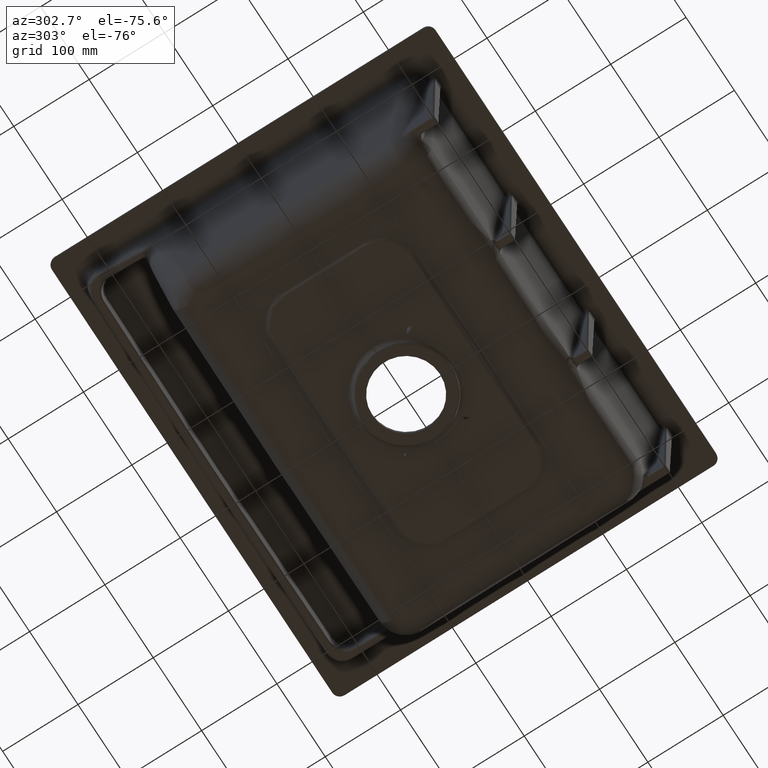
[diagram: clean part render]
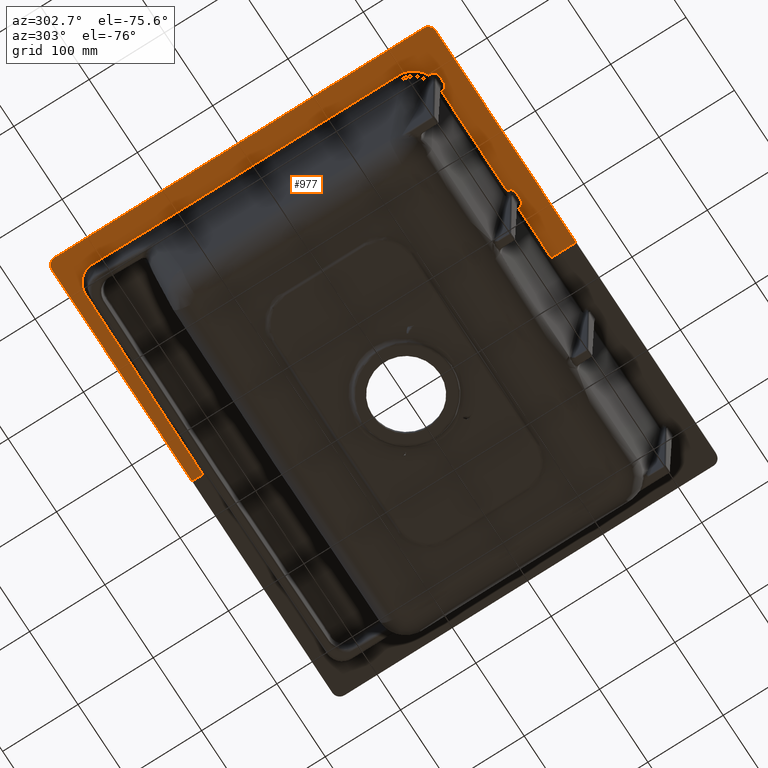
[diagram: same view with one face highlighted and labeled with its STEP entity id]
A machine part, auxiliary view. The second image highlights one B-rep face of the part: STEP entity #977.
In plain terms, the highlighted planar face has unit normal (0, 0, -1).
Its self-contained STEP definition (entity closure, byte-faithful):
#64=ELLIPSE('',#5563,10.0274281381557,10.);
#65=ELLIPSE('',#5566,10.0274281381549,9.99999999999955);
#437=PLANE('',#5619);
#465=LINE('',#13610,#494);
#466=LINE('',#13611,#495);
#469=LINE('',#19510,#498);
#472=LINE('',#19518,#501);
#473=LINE('',#20517,#502);
#474=LINE('',#20743,#503);
#494=VECTOR('',#5843,1.);
#495=VECTOR('',#5844,1.);
#498=VECTOR('',#5935,1.);
#501=VECTOR('',#5944,1.);
#502=VECTOR('',#5999,1.);
#503=VECTOR('',#6018,1.);
#977=ADVANCED_FACE('',(#1436),#437,.T.);
#1436=FACE_OUTER_BOUND('',#1800,.T.);
#1800=EDGE_LOOP('',(#3385,#3386,#3387,#3388,#3389,#3390,#3391,#3392,#3393,
#3394,#3395,#3396,#3397,#3398,#3399,#3400,#3401,#3402,#3403,#3404,#3405,
#3406,#3407,#3408));
#3385=ORIENTED_EDGE('',*,*,#4445,.T.);
#3386=ORIENTED_EDGE('',*,*,#4807,.T.);
#3387=ORIENTED_EDGE('',*,*,#4803,.T.);
#3388=ORIENTED_EDGE('',*,*,#4797,.T.);
#3389=ORIENTED_EDGE('',*,*,#4791,.T.);
#3390=ORIENTED_EDGE('',*,*,#4785,.T.);
#3391=ORIENTED_EDGE('',*,*,#4775,.T.);
#3392=ORIENTED_EDGE('',*,*,#4781,.T.);
#3393=ORIENTED_EDGE('',*,*,#4787,.T.);
#3394=ORIENTED_EDGE('',*,*,#4793,.T.);
#3395=ORIENTED_EDGE('',*,*,#4799,.T.);
#3396=ORIENTED_EDGE('',*,*,#4809,.T.);
#3397=ORIENTED_EDGE('',*,*,#4815,.T.);
#3398=ORIENTED_EDGE('',*,*,#4817,.T.);
#3399=ORIENTED_EDGE('',*,*,#4820,.T.);
#3400=ORIENTED_EDGE('',*,*,#4823,.T.);
#3401=ORIENTED_EDGE('',*,*,#4826,.T.);
#3402=ORIENTED_EDGE('',*,*,#4831,.T.);
#3403=ORIENTED_EDGE('',*,*,#4446,.T.);
#3404=ORIENTED_EDGE('',*,*,#4725,.F.);
#3405=ORIENTED_EDGE('',*,*,#4723,.T.);
#3406=ORIENTED_EDGE('',*,*,#4721,.F.);
#3407=ORIENTED_EDGE('',*,*,#4719,.T.);
#3408=ORIENTED_EDGE('',*,*,#4717,.T.);
#3558=VERTEX_POINT('',#6484);
#3729=VERTEX_POINT('',#12136);
#3734=VERTEX_POINT('',#12165);
#3782=VERTEX_POINT('',#13447);
#3938=VERTEX_POINT('',#19511);
#3939=VERTEX_POINT('',#19515);
#3940=VERTEX_POINT('',#19519);
#3941=VERTEX_POINT('',#19526);
#3966=VERTEX_POINT('',#20516);
#3967=VERTEX_POINT('',#20518);
#3971=VERTEX_POINT('',#20530);
#3972=VERTEX_POINT('',#20567);
#3975=VERTEX_POINT('',#20617);
#3976=VERTEX_POINT('',#20641);
#3979=VERTEX_POINT('',#20665);
#3980=VERTEX_POINT('',#20702);
#3983=VERTEX_POINT('',#20742);
#3984=VERTEX_POINT('',#20753);
#3988=VERTEX_POINT('',#20843);
#3991=VERTEX_POINT('',#20876);
#3993=VERTEX_POINT('',#20884);
#3995=VERTEX_POINT('',#20917);
#3997=VERTEX_POINT('',#20940);
#3999=VERTEX_POINT('',#20973);
#4445=EDGE_CURVE('',#3729,#3782,#465,.T.);
#4446=EDGE_CURVE('',#3558,#3734,#466,.T.);
#4717=EDGE_CURVE('',#3938,#3729,#469,.T.);
#4719=EDGE_CURVE('',#3939,#3938,#64,.T.);
#4721=EDGE_CURVE('',#3939,#3940,#472,.T.);
#4723=EDGE_CURVE('',#3941,#3940,#65,.T.);
#4725=EDGE_CURVE('',#3941,#3734,#5322,.T.);
#4775=EDGE_CURVE('',#3967,#3966,#473,.T.);
#4781=EDGE_CURVE('',#3966,#3971,#5356,.T.);
#4785=EDGE_CURVE('',#3972,#3967,#5360,.T.);
#4787=EDGE_CURVE('',#3971,#3975,#5361,.T.);
#4791=EDGE_CURVE('',#3976,#3972,#5364,.T.);
#4793=EDGE_CURVE('',#3975,#3979,#5365,.T.);
#4797=EDGE_CURVE('',#3980,#3976,#5369,.T.);
#4799=EDGE_CURVE('',#3979,#3983,#474,.T.);
#4803=EDGE_CURVE('',#3984,#3980,#5373,.T.);
#4807=EDGE_CURVE('',#3782,#3984,#5375,.T.);
#4809=EDGE_CURVE('',#3983,#3988,#5376,.T.);
#4815=EDGE_CURVE('',#3988,#3991,#5379,.T.);
#4817=EDGE_CURVE('',#3991,#3993,#5380,.T.);
#4820=EDGE_CURVE('',#3993,#3995,#5382,.T.);
#4823=EDGE_CURVE('',#3995,#3997,#5384,.T.);
#4826=EDGE_CURVE('',#3997,#3999,#5386,.T.);
#4831=EDGE_CURVE('',#3999,#3558,#5389,.T.);
#5322=B_SPLINE_CURVE_WITH_KNOTS('',3,(#19534,#19535,#19536,#19537),
 .UNSPECIFIED.,.F.,.F.,(4,4),(0.,1.),.UNSPECIFIED.);
#5356=B_SPLINE_CURVE_WITH_KNOTS('',3,(#20531,#20532,#20533,#20534,#20535,
#20536),.UNSPECIFIED.,.F.,.F.,(4,2,4),(0.,0.499999999999997,1.),
 .UNSPECIFIED.);
#5360=B_SPLINE_CURVE_WITH_KNOTS('',3,(#20575,#20576,#20577,#20578,#20579,
#20580,#20581,#20582,#20583,#20584),.UNSPECIFIED.,.F.,.F.,(4,2,2,2,4),(0.,
0.25,0.5,0.75,1.),.UNSPECIFIED.);
#5361=B_SPLINE_CURVE_WITH_KNOTS('',3,(#20618,#20619,#20620,#20621),
 .UNSPECIFIED.,.F.,.F.,(4,4),(0.,1.),.UNSPECIFIED.);
#5364=B_SPLINE_CURVE_WITH_KNOTS('',3,(#20647,#20648,#20649,#20650),
 .UNSPECIFIED.,.F.,.F.,(4,4),(0.,1.),.UNSPECIFIED.);
#5365=B_SPLINE_CURVE_WITH_KNOTS('',3,(#20666,#20667,#20668,#20669,#20670,
#20671),.UNSPECIFIED.,.F.,.F.,(4,2,4),(0.,0.5,1.),.UNSPECIFIED.);
#5369=B_SPLINE_CURVE_WITH_KNOTS('',3,(#20712,#20713,#20714,#20715),
 .UNSPECIFIED.,.F.,.F.,(4,4),(0.,1.),.UNSPECIFIED.);
#5373=B_SPLINE_CURVE_WITH_KNOTS('',3,(#20771,#20772,#20773,#20774,#20775,
#20776,#20777,#20778,#20779,#20780),.UNSPECIFIED.,.F.,.F.,(4,2,2,2,4),(0.,
0.25,0.499999999999999,0.749999999999998,1.),.UNSPECIFIED.);
#5375=B_SPLINE_CURVE_WITH_KNOTS('',3,(#20825,#20826,#20827,#20828),
 .UNSPECIFIED.,.F.,.F.,(4,4),(0.,1.),.UNSPECIFIED.);
#5376=B_SPLINE_CURVE_WITH_KNOTS('',3,(#20844,#20845,#20846,#20847),
 .UNSPECIFIED.,.F.,.F.,(4,4),(0.,1.),.UNSPECIFIED.);
#5379=B_SPLINE_CURVE_WITH_KNOTS('',3,(#20877,#20878,#20879,#20880),
 .UNSPECIFIED.,.F.,.F.,(4,4),(0.,1.),.UNSPECIFIED.);
#5380=B_SPLINE_CURVE_WITH_KNOTS('',3,(#20885,#20886,#20887,#20888,#20889,
#20890),.UNSPECIFIED.,.F.,.F.,(4,2,4),(0.,0.5,1.),.UNSPECIFIED.);
#5382=B_SPLINE_CURVE_WITH_KNOTS('',3,(#20918,#20919,#20920,#20921),
 .UNSPECIFIED.,.F.,.F.,(4,4),(0.,1.),.UNSPECIFIED.);
#5384=B_SPLINE_CURVE_WITH_KNOTS('',3,(#20941,#20942,#20943,#20944,#20945,
#20946),.UNSPECIFIED.,.F.,.F.,(4,2,4),(0.,0.5,1.),.UNSPECIFIED.);
#5386=B_SPLINE_CURVE_WITH_KNOTS('',3,(#20974,#20975,#20976,#20977),
 .UNSPECIFIED.,.F.,.F.,(4,4),(0.,1.),.UNSPECIFIED.);
#5389=B_SPLINE_CURVE_WITH_KNOTS('',3,(#20993,#20994,#20995,#20996),
 .UNSPECIFIED.,.F.,.F.,(4,4),(0.,1.),.UNSPECIFIED.);
#5563=AXIS2_PLACEMENT_3D('',#19514,#5939,#5940);
#5566=AXIS2_PLACEMENT_3D('',#19525,#5947,#5948);
#5619=AXIS2_PLACEMENT_3D('',#21009,#6055,#6056);
#5843=DIRECTION('',(0.,-1.,0.));
#5844=DIRECTION('',(0.,-1.,0.));
#5935=DIRECTION('',(1.,0.,0.));
#5939=DIRECTION('',(0.,0.,-1.));
#5940=DIRECTION('',(0.707106781186548,-0.707106781186548,0.));
#5944=DIRECTION('',(0.,-1.,0.));
#5947=DIRECTION('',(0.,0.,-1.));
#5948=DIRECTION('',(-0.70710678119122,-0.707106781181875,0.));
#5999=DIRECTION('',(0.,-1.,0.));
#6018=DIRECTION('',(0.,1.,0.));
#6055=DIRECTION('',(0.,0.,-1.));
#6056=DIRECTION('',(-1.,0.,0.));
#6484=CARTESIAN_POINT('',(-8.11543118939975E-13,-192.672775403693,-10.));
#12136=CARTESIAN_POINT('',(4.13590306276514E-22,284.291731327924,-10.));
#12165=CARTESIAN_POINT('',(-8.68845922370994E-16,-225.498637556748,-10.));
#13447=CARTESIAN_POINT('',(3.24319355164722E-8,269.846816152976,-10.));
#13610=CARTESIAN_POINT('',(0.,29.3965468806914,-10.));
#13611=CARTESIAN_POINT('',(0.,29.3965468806914,-10.));
#19510=CARTESIAN_POINT('',(-161.894993198295,284.291731327924,-10.));
#19511=CARTESIAN_POINT('',(-289.908889093888,284.291731327924,-10.));
#19514=CARTESIAN_POINT('',(-289.881460981455,274.278007867945,-10.));
#19515=CARTESIAN_POINT('',(-299.895184448263,274.305439737208,-10.0000001303037));
#19518=CARTESIAN_POINT('',(-299.895184441434,29.3965468806914,-10.));
#19519=CARTESIAN_POINT('',(-299.895184441433,-215.512342207663,-9.99999999998847));
#19525=CARTESIAN_POINT('',(-289.881460981454,-215.48491409523,-10.));
#19526=CARTESIAN_POINT('',(-289.908889080936,-225.49863754267,-9.99999975034023));
#19534=CARTESIAN_POINT('',(-289.90888909402,-225.498637555132,-10.));
#19535=CARTESIAN_POINT('',(-193.272592729346,-225.498637556039,-9.99999999999998));
#19536=CARTESIAN_POINT('',(-96.6362963646734,-225.498637559703,-9.99999999999998));
#19537=CARTESIAN_POINT('',(5.03069808033274E-14,-225.498637554702,-9.99999999999999));
#20516=CARTESIAN_POINT('',(-251.137396074365,-193.89400159666,-10.));
#20517=CARTESIAN_POINT('',(-251.137396074365,-192.411009267276,-10.));
#20518=CARTESIAN_POINT('',(-251.137396074365,-190.928016937892,-10.));
#20530=CARTESIAN_POINT('',(-244.107186534388,-200.893673758572,-10.));
#20531=CARTESIAN_POINT('',(-251.137396074365,-193.89400159666,-10.));
#20532=CARTESIAN_POINT('',(-251.137395774195,-195.747851054385,-10.));
#20533=CARTESIAN_POINT('',(-250.372310116333,-197.565154436289,-10.));
#20534=CARTESIAN_POINT('',(-247.777165946663,-200.147223138124,-10.));
#20535=CARTESIAN_POINT('',(-245.961019265606,-200.901811091508,-10.));
#20536=CARTESIAN_POINT('',(-244.107186534388,-200.893673758572,-10.));
#20567=CARTESIAN_POINT('',(-269.38679702231,-163.226329715868,-10.));
#20575=CARTESIAN_POINT('',(-269.38679702231,-163.226329715868,-10.));
#20576=CARTESIAN_POINT('',(-269.402930929925,-166.181529284543,-10.));
#20577=CARTESIAN_POINT('',(-268.99704333239,-169.067836871639,-10.));
#20578=CARTESIAN_POINT('',(-267.33555275632,-174.701742108875,-10.));
#20579=CARTESIAN_POINT('',(-266.063209213881,-177.42636423556,-10.));
#20580=CARTESIAN_POINT('',(-262.837687145497,-182.305633279269,-10.));
#20581=CARTESIAN_POINT('',(-260.869296714416,-184.505029482309,-10.));
#20582=CARTESIAN_POINT('',(-256.349535082931,-188.26016144267,-10.));
#20583=CARTESIAN_POINT('',(-253.861415485036,-189.77931210704,-10.));
#20584=CARTESIAN_POINT('',(-251.137396074365,-190.928016937888,-10.));
#20617=CARTESIAN_POINT('',(-234.715769537192,-200.852885212516,-10.));
#20618=CARTESIAN_POINT('',(-244.107186534388,-200.893673758572,-10.));
#20619=CARTESIAN_POINT('',(-240.976714834723,-200.879932664224,-10.));
#20620=CARTESIAN_POINT('',(-237.846242495616,-200.866336482193,-10.));
#20621=CARTESIAN_POINT('',(-234.715769537192,-200.852885212516,-10.));
#20641=CARTESIAN_POINT('',(-269.956498835161,164.066656093869,-10.));
#20647=CARTESIAN_POINT('',(-269.956498835161,164.066656093869,-10.));
#20648=CARTESIAN_POINT('',(-269.000926693744,54.9719001377043,-10.));
#20649=CARTESIAN_POINT('',(-268.811021413019,-54.1289080078152,-10.));
#20650=CARTESIAN_POINT('',(-269.386797737863,-163.226329711962,-10.));
#20665=CARTESIAN_POINT('',(-227.746358960821,-193.853210668212,-10.));
#20666=CARTESIAN_POINT('',(-234.715769537192,-200.852885212516,-10.));
#20667=CARTESIAN_POINT('',(-232.872192646793,-200.844963582061,-10.));
#20668=CARTESIAN_POINT('',(-231.068195411202,-200.081094417682,-10.));
#20669=CARTESIAN_POINT('',(-228.499773150112,-197.499631150042,-10.));
#20670=CARTESIAN_POINT('',(-227.746358960821,-195.696801924501,-10.));
#20671=CARTESIAN_POINT('',(-227.746358960821,-193.853210668212,-10.));
#20702=CARTESIAN_POINT('',(-270.774331671825,242.79443858215,-10.));
#20712=CARTESIAN_POINT('',(-270.774331671825,242.79443858215,-10.));
#20713=CARTESIAN_POINT('',(-270.463379980036,216.552271103826,-10.));
#20714=CARTESIAN_POINT('',(-270.188113942422,190.309643754194,-10.));
#20715=CARTESIAN_POINT('',(-269.957209726347,164.0666498671,-10.));
#20742=CARTESIAN_POINT('',(-227.74635896082,-193.226087563218,-10.));
#20743=CARTESIAN_POINT('',(-227.746358960821,-193.539649115715,-10.));
#20753=CARTESIAN_POINT('',(-246.084059581058,267.959744138025,-9.99999999999999));
#20771=CARTESIAN_POINT('',(-246.084059581058,267.959744138025,-9.99999999999999));
#20772=CARTESIAN_POINT('',(-249.377121607547,267.924531286088,-9.99999999999999));
#20773=CARTESIAN_POINT('',(-252.594662026424,267.253333992268,-10.));
#20774=CARTESIAN_POINT('',(-258.632314930154,264.695402769484,-10.));
#20775=CARTESIAN_POINT('',(-261.386969874272,262.817086618209,-10.));
#20776=CARTESIAN_POINT('',(-265.944404919952,258.17666764542,-10.));
#20777=CARTESIAN_POINT('',(-267.768876559502,255.392143169656,-10.));
#20778=CARTESIAN_POINT('',(-270.203783947445,249.328085773622,-10.));
#20779=CARTESIAN_POINT('',(-270.813267805037,246.087698681324,-9.99999999999999));
#20780=CARTESIAN_POINT('',(-270.774331663175,242.794438582252,-9.99999999999999));
#20825=CARTESIAN_POINT('',(1.20373693786124E-16,269.846816152976,-10.));
#20826=CARTESIAN_POINT('',(-82.0297169387721,269.459964458864,-10.));
#20827=CARTESIAN_POINT('',(-164.058056799527,268.830940635084,-10.));
#20828=CARTESIAN_POINT('',(-246.084059581759,267.959744203568,-10.));
#20843=CARTESIAN_POINT('',(-91.501387127024,-192.846268715909,-10.));
#20844=CARTESIAN_POINT('',(-227.74635896082,-193.226087563218,-10.));
#20845=CARTESIAN_POINT('',(-182.331442208917,-193.075257289778,-10.));
#20846=CARTESIAN_POINT('',(-136.916438542622,-192.948651953777,-10.));
#20847=CARTESIAN_POINT('',(-91.5013867312877,-192.846268715017,-10.));
#20876=CARTESIAN_POINT('',(-91.5013873142306,-193.309950844224,-10.));
#20877=CARTESIAN_POINT('',(-91.5013873142306,-192.846268716331,-10.));
#20878=CARTESIAN_POINT('',(-91.5013873142306,-193.000829425629,-10.));
#20879=CARTESIAN_POINT('',(-91.5013873142306,-193.155390134926,-10.));
#20880=CARTESIAN_POINT('',(-91.5013873142306,-193.309950844224,-10.));
#20884=CARTESIAN_POINT('',(-84.4824109540187,-200.309668379568,-10.));
#20885=CARTESIAN_POINT('',(-91.5013873142306,-193.309950844224,-10.));
#20886=CARTESIAN_POINT('',(-91.5013873142306,-195.161904778106,-10.));
#20887=CARTESIAN_POINT('',(-90.7379781034691,-196.977363697139,-10.));
#20888=CARTESIAN_POINT('',(-88.1474416351502,-199.558990259563,-10.));
#20889=CARTESIAN_POINT('',(-86.3343588657276,-200.314824950041,-10.));
#20890=CARTESIAN_POINT('',(-84.4824109540187,-200.309668379568,-10.));
#20917=CARTESIAN_POINT('',(-75.0901999932965,-200.283951482608,-10.));
#20918=CARTESIAN_POINT('',(-84.4824109540187,-200.309668379568,-10.));
#20919=CARTESIAN_POINT('',(-81.3516743673148,-200.300951145278,-10.));
#20920=CARTESIAN_POINT('',(-78.2209373736977,-200.292378846282,-10.));
#20921=CARTESIAN_POINT('',(-75.0901999932965,-200.283951482608,-10.));
#20940=CARTESIAN_POINT('',(-68.1095541236104,-193.28423386515,-10.));
#20941=CARTESIAN_POINT('',(-75.0901999932965,-200.283951482608,-10.));
#20942=CARTESIAN_POINT('',(-73.2447173357526,-200.278983785985,-10.));
#20943=CARTESIAN_POINT('',(-71.4376451107075,-199.516331440409,-10.));
#20944=CARTESIAN_POINT('',(-68.8646356145466,-196.934400999577,-10.));
#20945=CARTESIAN_POINT('',(-68.1095541236105,-195.12972053809,-10.));
#20946=CARTESIAN_POINT('',(-68.1095541236105,-193.28423386515,-10.));
#20973=CARTESIAN_POINT('',(-68.1095541236105,-192.795676655744,-10.));
#20974=CARTESIAN_POINT('',(-68.1095541236104,-193.28423386515,-10.));
#20975=CARTESIAN_POINT('',(-68.1095541236104,-193.121381378681,-10.));
#20976=CARTESIAN_POINT('',(-68.1095541236105,-192.958528892212,-10.));
#20977=CARTESIAN_POINT('',(-68.1095541236105,-192.795676405743,-10.));
#20993=CARTESIAN_POINT('',(-68.1095541236104,-192.795676405743,-10.));
#20994=CARTESIAN_POINT('',(-45.4063811461697,-192.748652474197,-10.));
#20995=CARTESIAN_POINT('',(-22.7031948243392,-192.707681656941,-10.));
#20996=CARTESIAN_POINT('',(-1.34321647519019E-14,-192.672763726981,-10.));
#21009=CARTESIAN_POINT('',(2.16840434497101E-16,-225.498637560737,-10.));